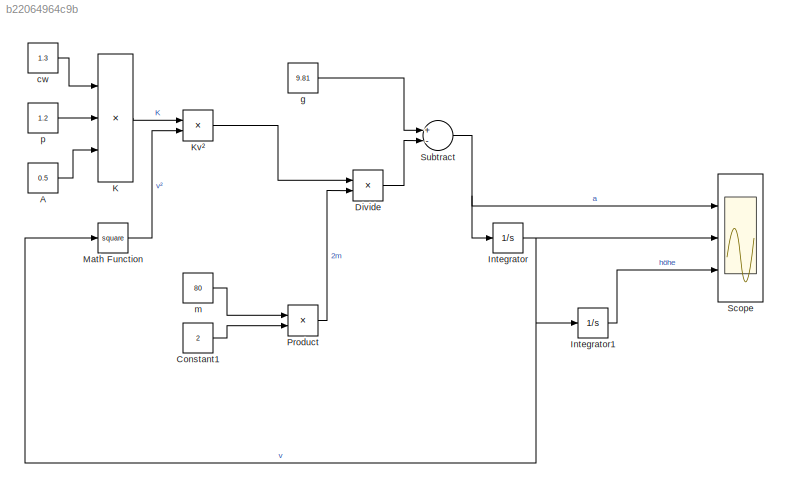
MODEL slx_b22064964c9b
KIND model
CONFIG AbsTol = auto
CONFIG FixedStep = auto
CONFIG MaxStep = auto
CONFIG MinStep = auto
CONFIG RelTol = 1e-3
CONFIG SampleTimeConstraint = Unconstrained
CONFIG Solver = ode45
CONFIG SolverMode = Auto
CONFIG SolverName = ode45
CONFIG StartTime = 0.0
CONFIG StopTime = 25.0
BLOCK [Constant] A 
  Value = 0.5
BLOCK [Constant] Constant1
  Value = 2
BLOCK [Product] Divide
  InputSameDT = off
  Inputs = */
  OutDataTypeStr = Inherit: Inherit via internal rule
  Ports = [2, 1]
  RndMeth = Floor
  SaturateOnIntegerOverflow = off
BLOCK [Integrator] Integrator
  Ports = [1, 1]
BLOCK [Integrator] Integrator1
  Ports = [1, 1]
BLOCK [Product] K
  InputSameDT = off
  Inputs = 3
  OutDataTypeStr = Inherit: Inherit via internal rule
  Ports = [3, 1]
  RndMeth = Floor
  SaturateOnIntegerOverflow = off
BLOCK [Product] Kv²
  InputSameDT = off
  OutDataTypeStr = Inherit: Inherit via internal rule
  Ports = [2, 1]
  RndMeth = Floor
  SaturateOnIntegerOverflow = off
BLOCK [Math] Math Function
  Operator = square
  Ports = [1, 1]
BLOCK [Product] Product
  InputSameDT = off
  OutDataTypeStr = Inherit: Inherit via internal rule
  Ports = [2, 1]
  RndMeth = Floor
  SaturateOnIntegerOverflow = off
BLOCK [Scope] Scope
  Floating = off
  NumInputPorts = 3
  Ports = [3]
  YMax = 5~5~5
  YMin = -5~-5~-5
BLOCK [Sum] Subtract
  InputSameDT = off
  Inputs = +-
  OutDataTypeStr = Inherit: Inherit via internal rule
  Ports = [2, 1]
  SaturateOnIntegerOverflow = off
BLOCK [Constant] cw 
  Value = 1.3
BLOCK [Constant] g
  Value = 9.81
BLOCK [Constant] m 
  Value = 80
BLOCK [Constant] p 
  Value = 1.2
LINE A :1 -> K:3
LINE Constant1:1 -> Product:2
LINE Divide:1 -> Subtract:2
LINE Integrator1:1 -> Scope:3
NET Integrator:1 -> Integrator1:1, Math Function:1, Scope:2
LINE K:1 -> Kv²:1
LINE Kv²:1 -> Divide:1
LINE Math Function:1 -> Kv²:2
LINE Product:1 -> Divide:2
NET Subtract:1 -> Integrator:1, Scope:1
LINE cw :1 -> K:1
LINE g:1 -> Subtract:1
LINE m :1 -> Product:1
LINE p :1 -> K:2
note: NET lines group one-source signal fan-out (src -> all destinations, sorted); 1:1 wires keep LINE
